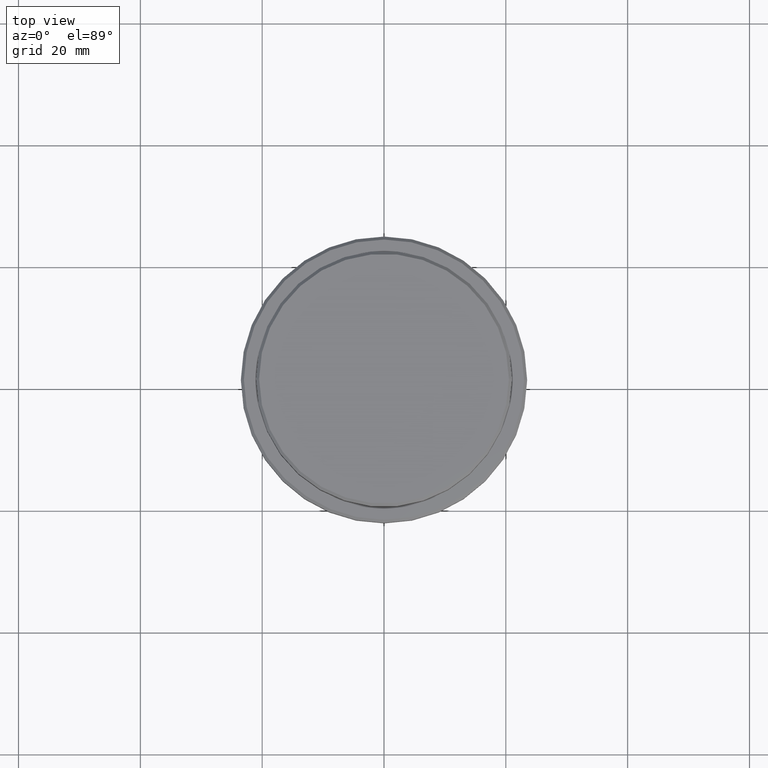
[diagram: clean part render]
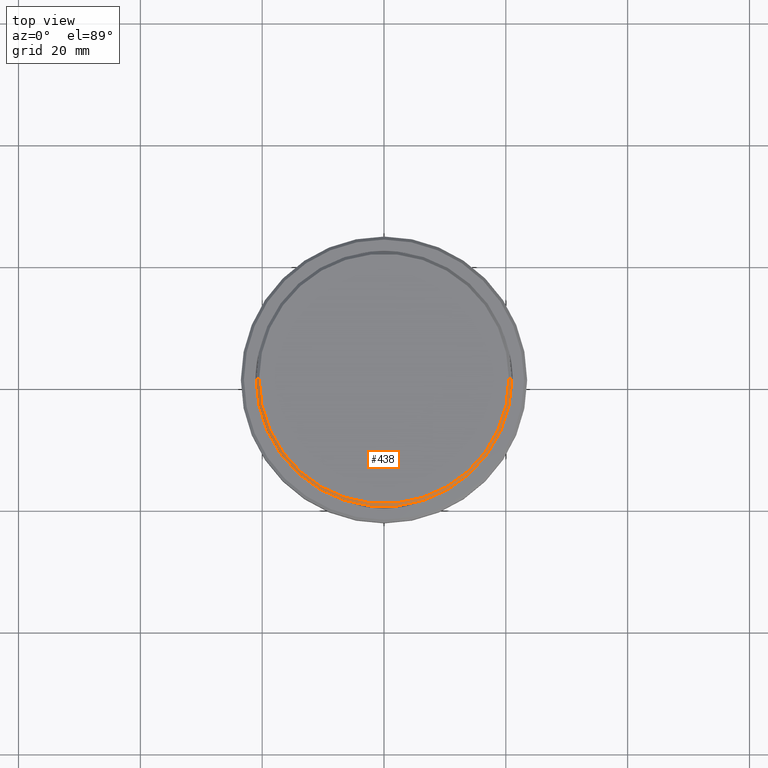
[diagram: same view with one face highlighted and labeled with its STEP entity id]
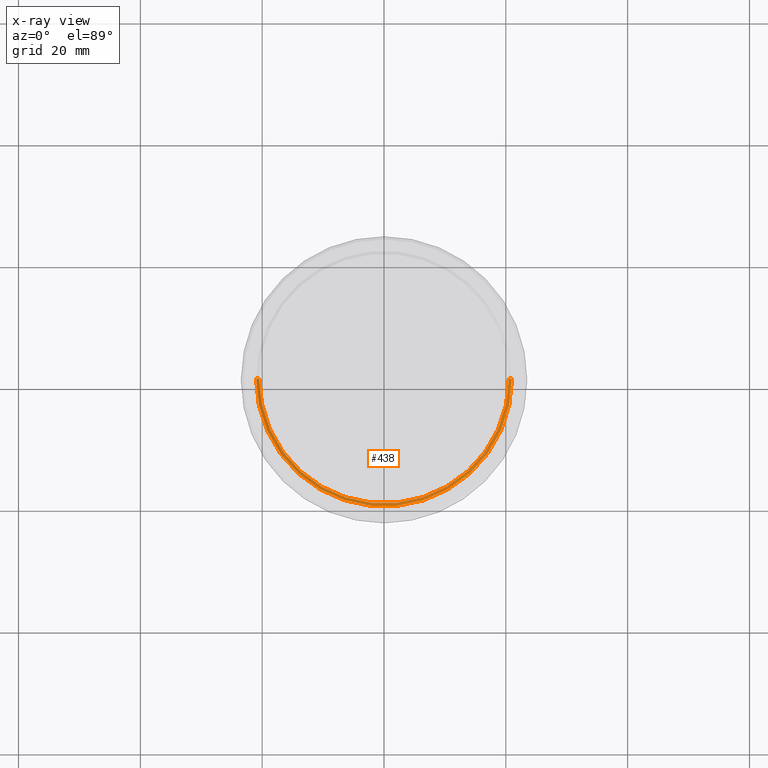
[diagram: x-ray of the same camera — body ghosted, the highlighted face saturated]
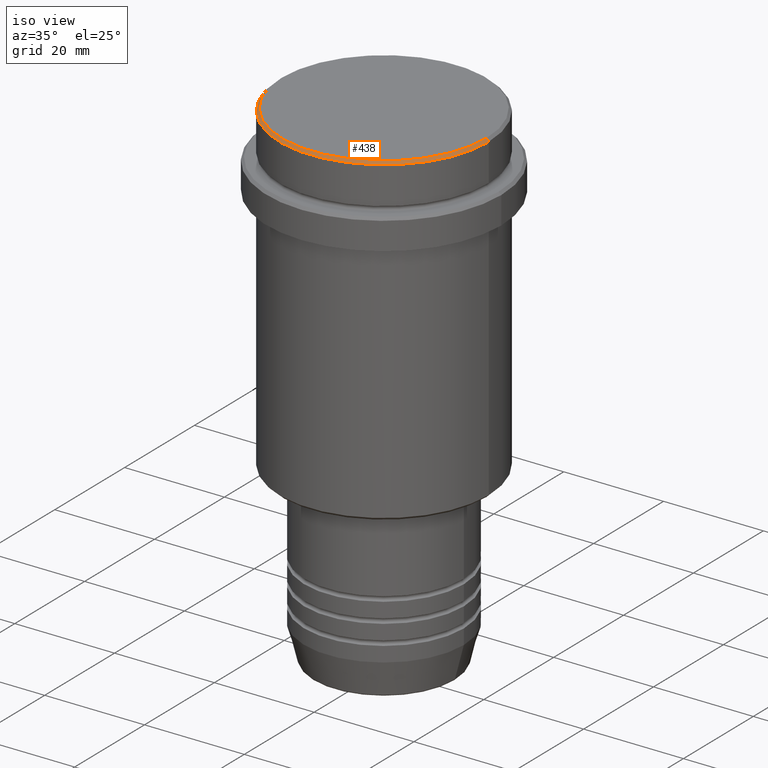
[diagram: same view with one face highlighted and labeled with its STEP entity id]
A machine part, top view. The second image highlights one B-rep face of the part: STEP entity #438.
The next image is the same camera in x-ray: the body ghosted, the highlighted face saturated — about 0% of this face is hidden behind the body in this view.
A second angle (iso view) of the same face is appended — the face is thin or edge-on in the first view.
In plain terms, the highlighted conical surface has half-angle 45 deg.
Its self-contained STEP definition (entity closure, byte-faithful):
#20 = FACE_OUTER_BOUND ( 'NONE', #1373, .T. ) ;
#31 = EDGE_CURVE ( 'NONE', #1392, #1070, #1015, .T. ) ;
#34 = DIRECTION ( 'NONE',  ( -0.000000000000000000, -0.000000000000000000, 1.000000000000000000 ) ) ;
#89 = VERTEX_POINT ( 'NONE', #801 ) ;
#242 = DIRECTION ( 'NONE',  ( 0.000000000000000000, 0.000000000000000000, -1.000000000000000000 ) ) ;
#251 = ORIENTED_EDGE ( 'NONE', *, *, #31, .F. ) ;
#312 = AXIS2_PLACEMENT_3D ( 'NONE', #1014, #34, #1237 ) ;
#438 = ADVANCED_FACE ( 'NONE', ( #20 ), #887, .T. ) ;
#442 = DIRECTION ( 'NONE',  ( -1.000000000000000000, 0.000000000000000000, 0.000000000000000000 ) ) ;
#460 = EDGE_CURVE ( 'NONE', #89, #1022, #1343, .T. ) ;
#486 = DIRECTION ( 'NONE',  ( 1.000000000000000000, 0.000000000000000000, 0.000000000000000000 ) ) ;
#498 = VECTOR ( 'NONE', #784, 1000.000000000000114 ) ;
#578 = EDGE_CURVE ( 'NONE', #89, #1392, #1188, .T. ) ;
#607 = AXIS2_PLACEMENT_3D ( 'NONE', #1212, #242, #442 ) ;
#632 = EDGE_CURVE ( 'NONE', #1070, #1022, #815, .T. ) ;
#767 = CARTESIAN_POINT ( 'NONE',  ( -21.00000000000000000, 2.571758278209441661E-15, -0.4999999999999970024 ) ) ;
#778 = CARTESIAN_POINT ( 'NONE',  ( -20.50000000000000355, 0.000000000000000000, 0.000000000000000000 ) ) ;
#784 = DIRECTION ( 'NONE',  ( -0.7071067811865474617, 0.000000000000000000, -0.7071067811865474617 ) ) ;
#801 = CARTESIAN_POINT ( 'NONE',  ( -20.50000000000000355, 0.000000000000000000, 0.000000000000000000 ) ) ;
#814 = ORIENTED_EDGE ( 'NONE', *, *, #578, .F. ) ;
#815 = CIRCLE ( 'NONE', #1409, 21.00000000000000000 ) ;
#821 = DIRECTION ( 'NONE',  ( 0.000000000000000000, 0.000000000000000000, -1.000000000000000000 ) ) ;
#833 = ORIENTED_EDGE ( 'NONE', *, *, #460, .T. ) ;
#878 = CARTESIAN_POINT ( 'NONE',  ( 20.50000000000000355, 2.510525938252074481E-15, 0.000000000000000000 ) ) ;
#887 = CONICAL_SURFACE ( 'NONE', #607, 20.50000000000000355, 0.7853981633974482790 ) ;
#1014 = CARTESIAN_POINT ( 'NONE',  ( 0.000000000000000000, 0.000000000000000000, 0.000000000000000000 ) ) ;
#1015 = LINE ( 'NONE', #878, #1323 ) ;
#1022 = VERTEX_POINT ( 'NONE', #767 ) ;
#1053 = CARTESIAN_POINT ( 'NONE',  ( 0.000000000000000000, 0.000000000000000000, -0.4999999999999970024 ) ) ;
#1070 = VERTEX_POINT ( 'NONE', #1257 ) ;
#1188 = CIRCLE ( 'NONE', #312, 20.50000000000000355 ) ;
#1212 = CARTESIAN_POINT ( 'NONE',  ( 0.000000000000000000, 0.000000000000000000, 0.000000000000000000 ) ) ;
#1237 = DIRECTION ( 'NONE',  ( 1.000000000000000000, 0.000000000000000000, 0.000000000000000000 ) ) ;
#1257 = CARTESIAN_POINT ( 'NONE',  ( 21.00000000000000000, 0.000000000000000000, -0.4999999999999970024 ) ) ;
#1304 = ORIENTED_EDGE ( 'NONE', *, *, #632, .F. ) ;
#1314 = CARTESIAN_POINT ( 'NONE',  ( 20.50000000000000355, 2.541142108230758269E-15, 0.000000000000000000 ) ) ;
#1318 = DIRECTION ( 'NONE',  ( 0.7071067811865474617, 8.659560562354932858E-17, -0.7071067811865474617 ) ) ;
#1323 = VECTOR ( 'NONE', #1318, 1000.000000000000114 ) ;
#1343 = LINE ( 'NONE', #778, #498 ) ;
#1373 = EDGE_LOOP ( 'NONE', ( #251, #814, #833, #1304 ) ) ;
#1392 = VERTEX_POINT ( 'NONE', #1314 ) ;
#1409 = AXIS2_PLACEMENT_3D ( 'NONE', #1053, #821, #486 ) ;